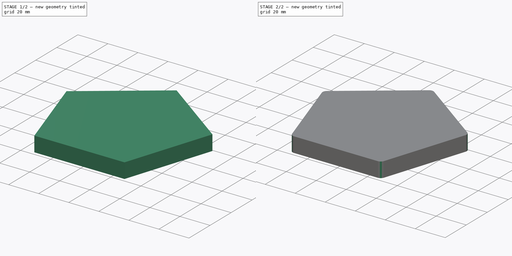
[diagram: build sequence overview — one tinted view per stage of 2, left to right]
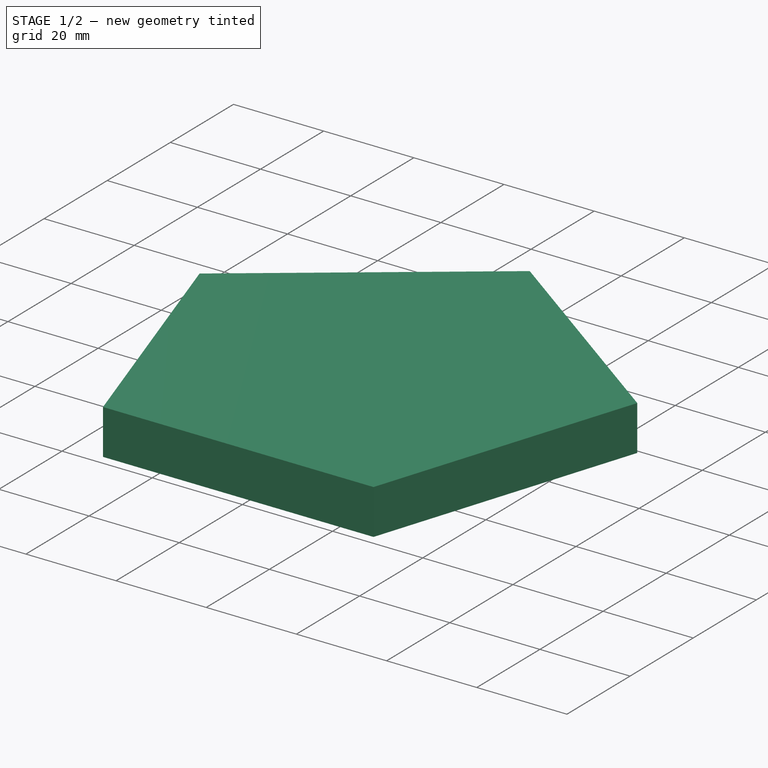
[diagram: stage 1 of 2 — iso view after this stage's code; geometry added in this stage tinted green]
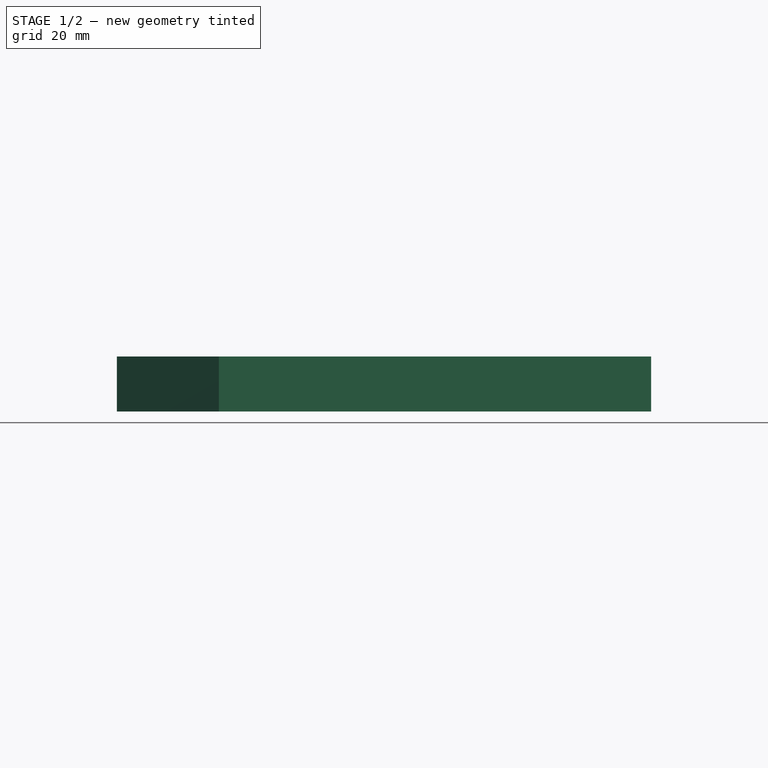
[diagram: stage 1 of 2 — front view after this stage's code; geometry added in this stage tinted green]
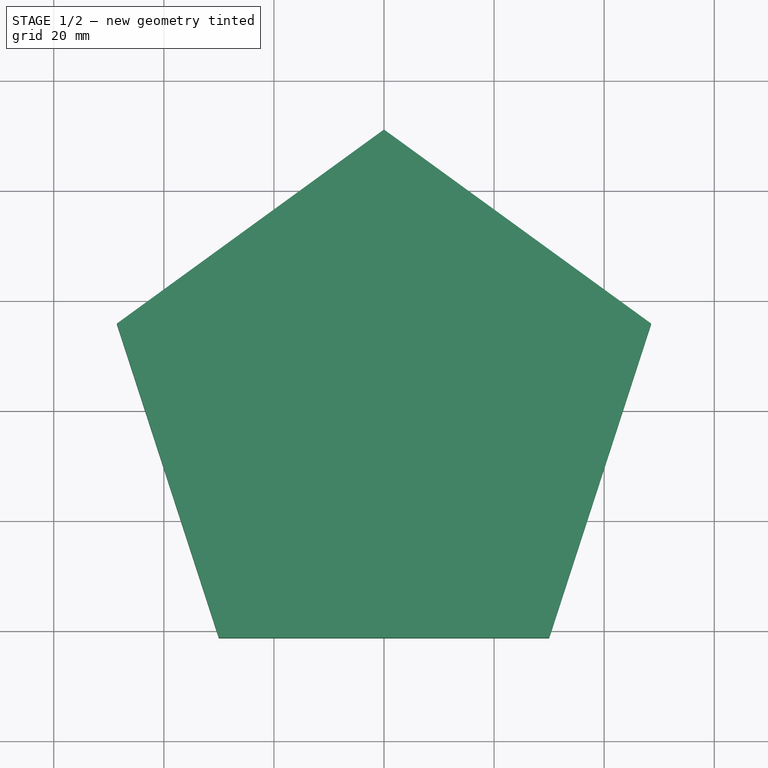
[diagram: stage 1 of 2 — top view after this stage's code; geometry added in this stage tinted green]
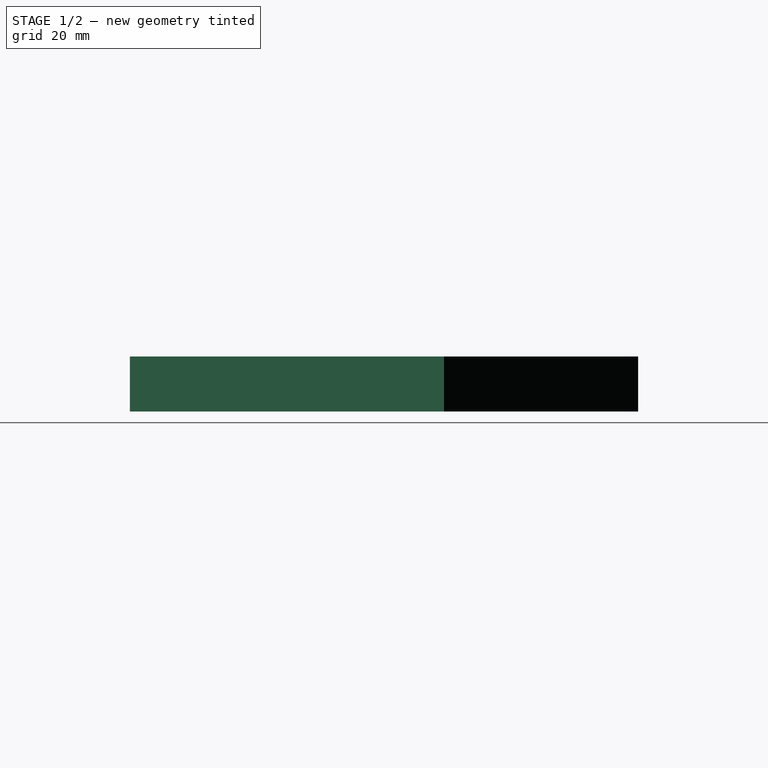
[diagram: stage 1 of 2 — right view after this stage's code; geometry added in this stage tinted green]
FCSTD DOCUMENT  (FreeCAD 0.16R6707 (Git))
Label: Pentagono
License: CreativeCommons Attribution-ShareAlike
LicenseURL: http://creativecommons.org/licenses/by-sa/4.0/
objects: Sketcher::SketchObject×1, PartDesign::Pad×1, PartDesign::Fillet×1
note: 4 computed .brp shape members not serialized (recipe doc carries the construction recipe); baked Part::Feature solids carry a one-line shape summary decoded from their .brp

FEATURE [Sketcher::SketchObject] Sketch  label="BCT_Pentagono"
  sketch-geometry (7):
    g0: LineSegment StartX=0 StartY=51.039 StartZ=0 EndX=-48.541 EndY=15.7719 EndZ=0
    g1: LineSegment StartX=-48.541 StartY=15.7719 StartZ=0 EndX=-30 EndY=-41.2915 EndZ=0
    g2: LineSegment StartX=-30 StartY=-41.2915 StartZ=0 EndX=30 EndY=-41.2915 EndZ=0
    g3: LineSegment StartX=30 StartY=-41.2915 StartZ=0 EndX=48.541 EndY=15.7719 EndZ=0
    g4: LineSegment StartX=48.541 StartY=15.7719 StartZ=0 EndX=0 EndY=51.039 EndZ=0
    g5: LineSegment [constr] StartX=0 StartY=0 StartZ=0 EndX=-48.541 EndY=15.7719 EndZ=0
    g6: LineSegment [constr] StartX=-30 StartY=-41.2915 StartZ=0 EndX=0 EndY=0 EndZ=0
  constraints (19):
    c: DistanceX(g2,g2) = 60
    c: Angle(g5,g6) = 1.25664
    c: Angle(g-2,g5) = 1.25664
    c: Symmetric(g0,g3,g-2)
    c: Symmetric(g1,g2,g-2)
    c: PointOnObject(g0,g-2)
    c: Coincident(g2,g3)
    c: Coincident(g0,g1)
    c: Coincident(g0,g5)
    c: Coincident(g3,g4)
    c: Coincident(g1,g2)
    c: Coincident(g1,g6)
    c: Coincident(g0,g4)
    c: Coincident(g5,g6)
    c: Coincident(g5,g-1)
    c: Equal(g4,g0)
    c: Equal(g0,g1)
    c: Equal(g1,g2)
    c: Equal(g2,g3)
FEATURE [PartDesign::Pad] Pad  label="Pentagono"
  Length = 10
  Length2 = 100
  Sketch = -> Sketch
  Type = 0
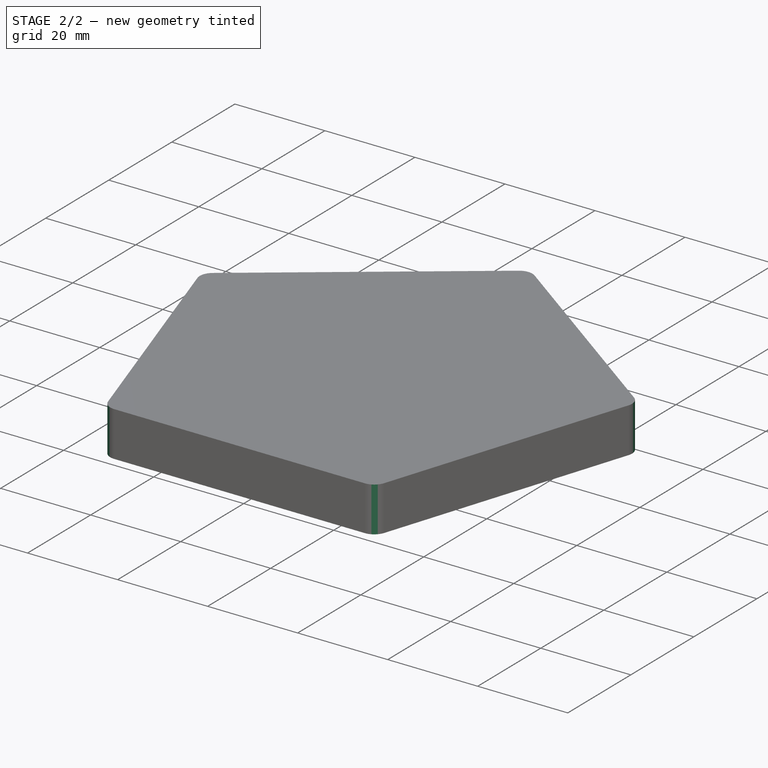
[diagram: stage 2 of 2 — iso view after this stage's code; geometry added in this stage tinted green]
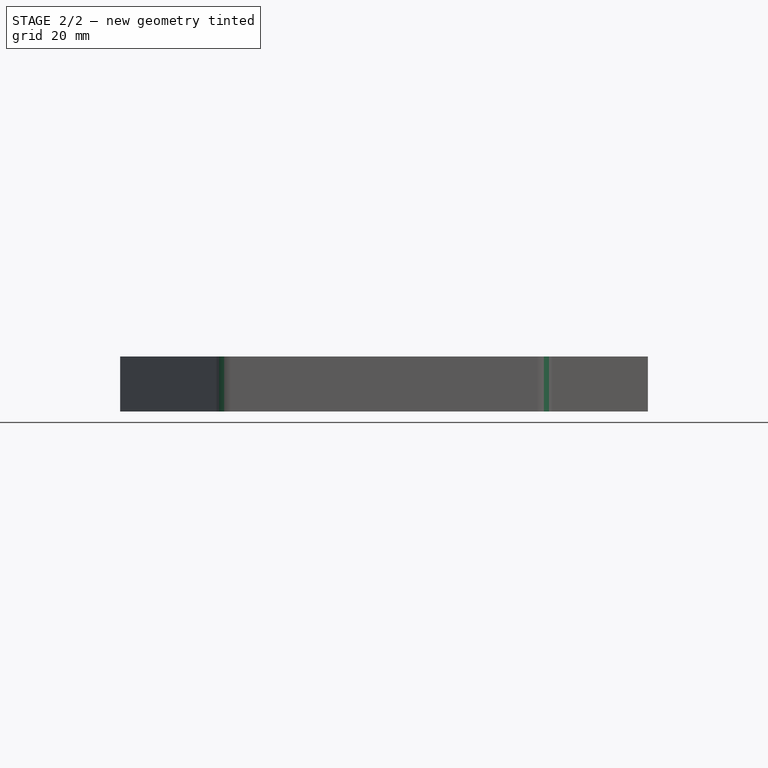
[diagram: stage 2 of 2 — front view after this stage's code; geometry added in this stage tinted green]
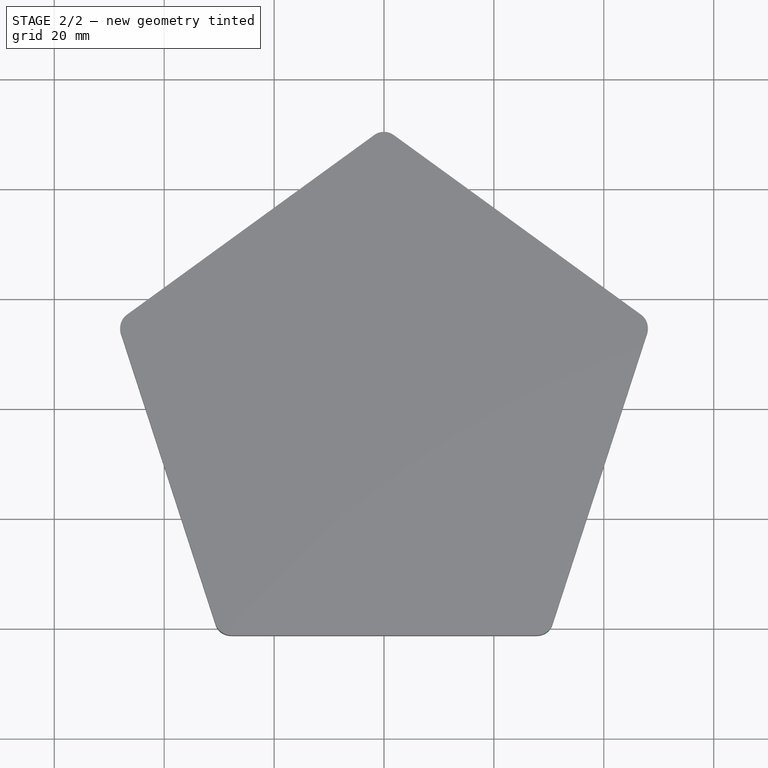
[diagram: stage 2 of 2 — top view after this stage's code; geometry added in this stage tinted green]
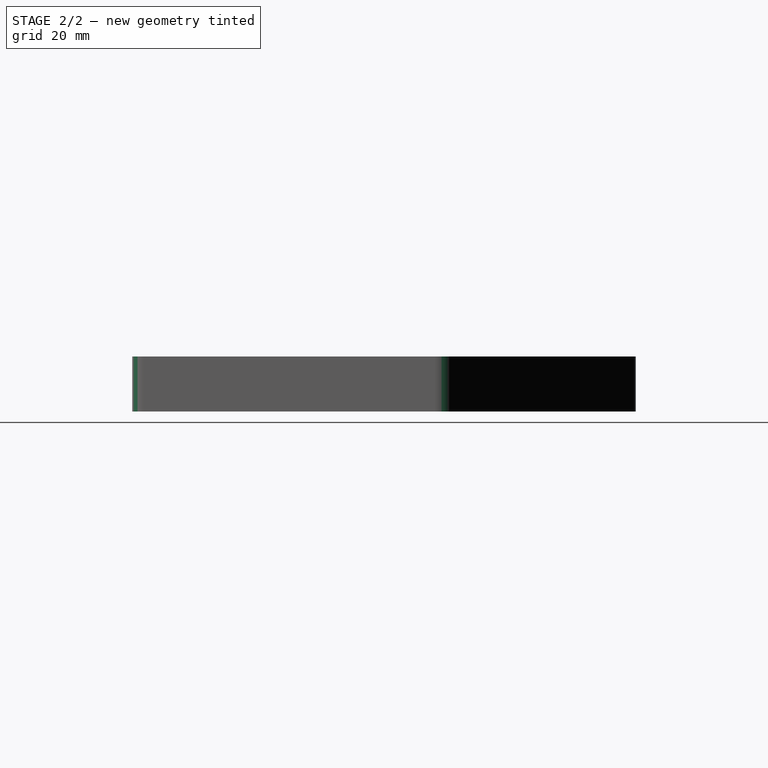
[diagram: stage 2 of 2 — right view after this stage's code; geometry added in this stage tinted green]
FEATURE [PartDesign::Fillet] Fillet  label="Pentagono_redondeado"
  Base = -> Pad [Edge11,Edge1,Edge2,Edge5,Edge8]
  Radius = 3
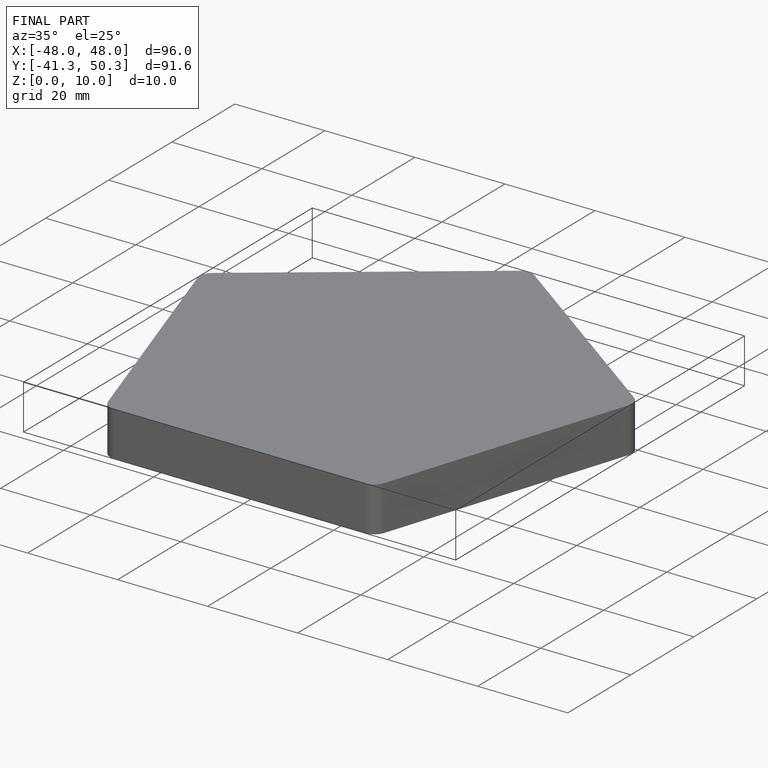
[diagram: finished part — iso view with bounding-box wireframe]
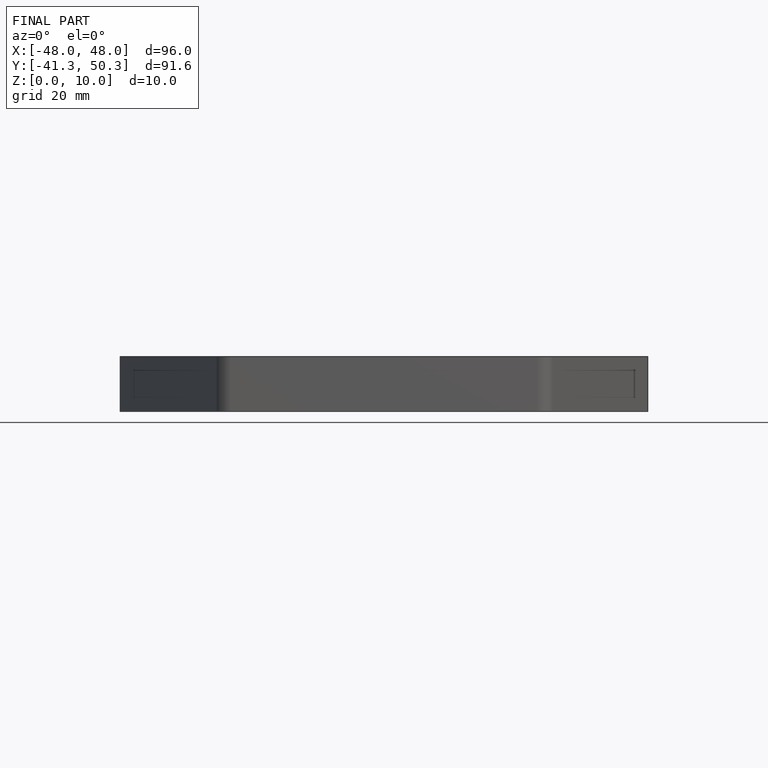
[diagram: finished part — front view with bounding-box wireframe]
